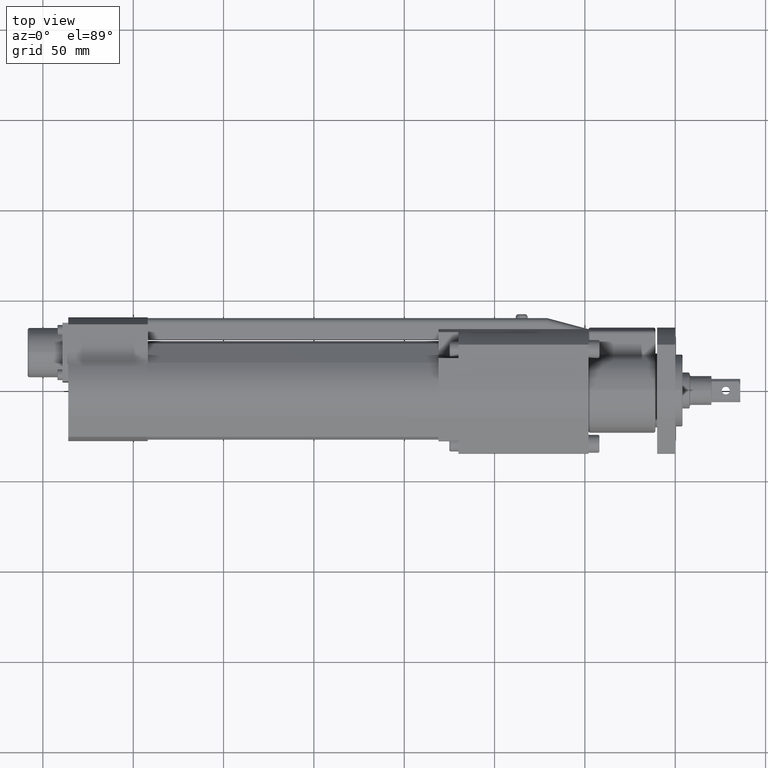
[diagram: clean part render]
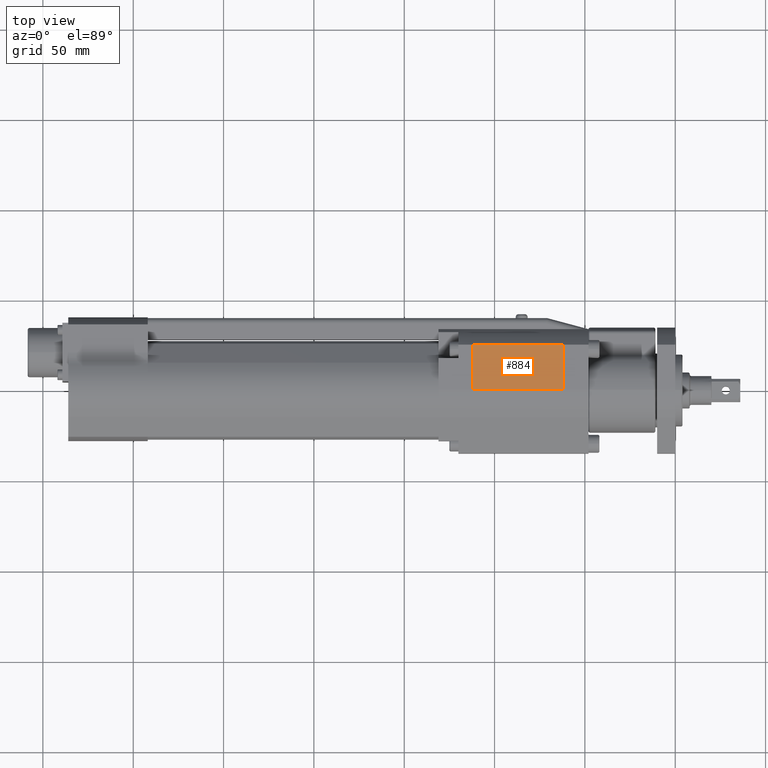
[diagram: same view with one face highlighted and labeled with its STEP entity id]
A machine part, top view. The second image highlights one B-rep face of the part: STEP entity #884.
In plain terms, the highlighted planar face has unit normal (0, 0, -1).
Its self-contained STEP definition (entity closure, byte-faithful):
#293 = CARTESIAN_POINT ( 'NONE',  ( -62.00000000000000000, 24.99499949989998600, 24.50000000000000000 ) ) ;
#709 = FACE_OUTER_BOUND ( 'NONE', #4998, .T. ) ;
#767 = CARTESIAN_POINT ( 'NONE',  ( -112.0000000000000000, 24.99499949989998600, 24.50000000000000000 ) ) ;
#782 = VERTEX_POINT ( 'NONE', #293 ) ;
#884 = ADVANCED_FACE ( 'NONE', ( #709 ), #1117, .F. ) ;
#1117 = PLANE ( 'NONE',  #1328 ) ;
#1158 = VECTOR ( 'NONE', #1497, 1000.000000000000000 ) ;
#1328 = AXIS2_PLACEMENT_3D ( 'NONE', #8285, #1853, #6860 ) ;
#1381 = LINE ( 'NONE', #8960, #8779 ) ;
#1497 = DIRECTION ( 'NONE',  ( 1.000000000000000000, -0.0000000000000000000, -0.0000000000000000000 ) ) ;
#1853 = DIRECTION ( 'NONE',  ( 0.0000000000000000000, 0.0000000000000000000, -1.000000000000000000 ) ) ;
#2411 = VERTEX_POINT ( 'NONE', #6110 ) ;
#2614 = CARTESIAN_POINT ( 'NONE',  ( -62.00000000000000000, 0.0000000000000000000, 24.50000000000000000 ) ) ;
#3100 = DIRECTION ( 'NONE',  ( 0.0000000000000000000, 1.000000000000000000, 0.0000000000000000000 ) ) ;
#3858 = CARTESIAN_POINT ( 'NONE',  ( -112.0000000000000000, 0.0000000000000000000, 24.50000000000000000 ) ) ;
#4299 = ORIENTED_EDGE ( 'NONE', *, *, #6147, .T. ) ;
#4472 = LINE ( 'NONE', #6985, #8093 ) ;
#4998 = EDGE_LOOP ( 'NONE', ( #7683, #7827, #7631, #4299 ) ) ;
#5571 = DIRECTION ( 'NONE',  ( 0.0000000000000000000, 1.000000000000000000, 0.0000000000000000000 ) ) ;
#5701 = EDGE_CURVE ( 'NONE', #7282, #2411, #9089, .T. ) ;
#6110 = CARTESIAN_POINT ( 'NONE',  ( -112.0000000000000000, 24.99499949989998600, 24.50000000000000000 ) ) ;
#6147 = EDGE_CURVE ( 'NONE', #7282, #6656, #1381, .T. ) ;
#6656 = VERTEX_POINT ( 'NONE', #2614 ) ;
#6709 = EDGE_CURVE ( 'NONE', #6656, #782, #4472, .T. ) ;
#6819 = DIRECTION ( 'NONE',  ( 1.000000000000000000, -0.0000000000000000000, -0.0000000000000000000 ) ) ;
#6860 = DIRECTION ( 'NONE',  ( -1.000000000000000000, 0.0000000000000000000, -0.0000000000000000000 ) ) ;
#6863 = EDGE_CURVE ( 'NONE', #2411, #782, #6880, .T. ) ;
#6880 = LINE ( 'NONE', #767, #1158 ) ;
#6985 = CARTESIAN_POINT ( 'NONE',  ( -62.00000000000000000, 0.0000000000000000000, 24.50000000000000000 ) ) ;
#7282 = VERTEX_POINT ( 'NONE', #8127 ) ;
#7631 = ORIENTED_EDGE ( 'NONE', *, *, #5701, .F. ) ;
#7683 = ORIENTED_EDGE ( 'NONE', *, *, #6709, .T. ) ;
#7827 = ORIENTED_EDGE ( 'NONE', *, *, #6863, .F. ) ;
#8093 = VECTOR ( 'NONE', #5571, 1000.000000000000000 ) ;
#8127 = CARTESIAN_POINT ( 'NONE',  ( -112.0000000000000000, 0.0000000000000000000, 24.50000000000000000 ) ) ;
#8285 = CARTESIAN_POINT ( 'NONE',  ( -112.0000000000000000, 0.0000000000000000000, 24.50000000000000000 ) ) ;
#8779 = VECTOR ( 'NONE', #6819, 1000.000000000000000 ) ;
#8853 = VECTOR ( 'NONE', #3100, 1000.000000000000000 ) ;
#8960 = CARTESIAN_POINT ( 'NONE',  ( -112.0000000000000000, 0.0000000000000000000, 24.50000000000000000 ) ) ;
#9089 = LINE ( 'NONE', #3858, #8853 ) ;